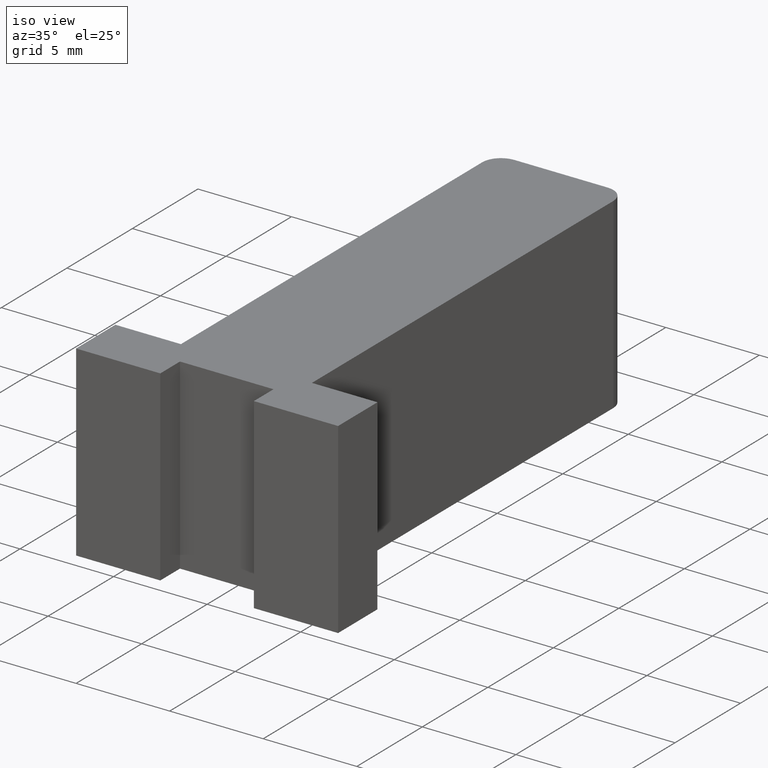
[diagram: clean part render]
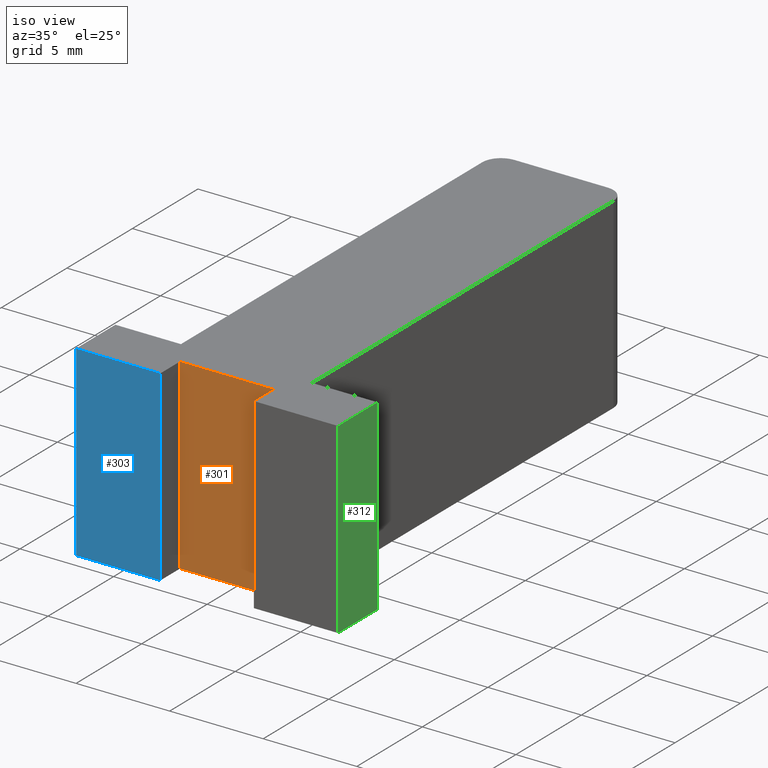
[diagram: same view with three faces highlighted in distinct colors, each labeled with its STEP entity id]
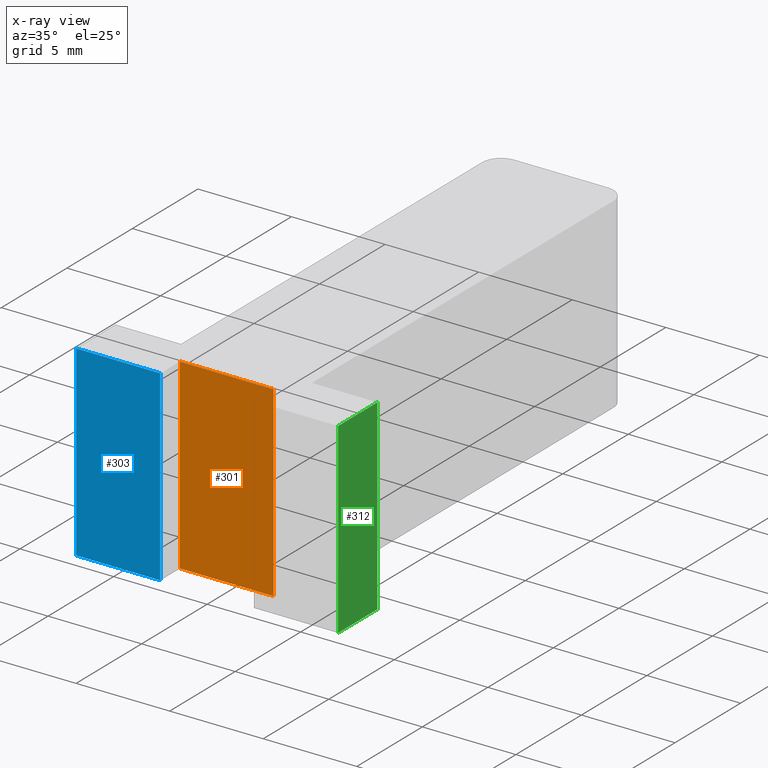
[diagram: x-ray of the same camera — body ghosted, the three highlighted faces saturated]
A machine part, iso view with three faces highlighted in distinct colors.
The next image is the same camera in x-ray (body ghosted, the three faces saturated) — at least one of them is partly hidden behind the body in this view.
Their STEP definitions:

[orange] entity #301 — the highlighted planar face has unit normal (0, -1, 0).
#21=FACE_OUTER_BOUND('',#37,.T.);
#37=EDGE_LOOP('',(#219,#220,#221,#222));
#58=LINE('',#448,#96);
#68=LINE('',#472,#106);
#70=LINE('',#476,#108);
#71=LINE('',#477,#109);
#96=VECTOR('',#365,10.);
#106=VECTOR('',#381,10.);
#108=VECTOR('',#385,10.);
#109=VECTOR('',#386,10.);
#134=VERTEX_POINT('',#445);
#135=VERTEX_POINT('',#447);
#146=VERTEX_POINT('',#470);
#147=VERTEX_POINT('',#475);
#162=EDGE_CURVE('',#135,#134,#58,.T.);
#174=EDGE_CURVE('',#146,#134,#68,.T.);
#176=EDGE_CURVE('',#146,#147,#70,.T.);
#177=EDGE_CURVE('',#147,#135,#71,.T.);
#219=ORIENTED_EDGE('',*,*,#176,.T.);
#220=ORIENTED_EDGE('',*,*,#177,.T.);
#221=ORIENTED_EDGE('',*,*,#162,.T.);
#222=ORIENTED_EDGE('',*,*,#174,.F.);
#287=PLANE('',#342);
#301=ADVANCED_FACE('',(#21),#287,.T.);
#342=AXIS2_PLACEMENT_3D('',#474,#383,#384);
#365=DIRECTION('',(1.,0.,0.));
#381=DIRECTION('',(0.,0.,-1.));
#383=DIRECTION('center_axis',(0.,-1.,0.));
#384=DIRECTION('ref_axis',(0.,0.,-1.));
#385=DIRECTION('',(-1.,0.,0.));
#386=DIRECTION('',(0.,0.,-1.));
#445=CARTESIAN_POINT('',(2.5,1.5,-5.));
#447=CARTESIAN_POINT('',(-2.5,1.5,-5.));
#448=CARTESIAN_POINT('',(2.5,1.5,-5.));
#470=CARTESIAN_POINT('',(2.5,1.5,5.));
#472=CARTESIAN_POINT('',(2.5,1.5,0.));
#474=CARTESIAN_POINT('Origin',(2.5,1.5,0.));
#475=CARTESIAN_POINT('',(-2.5,1.5,5.));
#476=CARTESIAN_POINT('',(2.5,1.5,5.));
#477=CARTESIAN_POINT('',(-2.5,1.5,0.));

[blue] entity #303 — the highlighted planar face has unit normal (0, -1, 0).
#23=FACE_OUTER_BOUND('',#39,.T.);
#39=EDGE_LOOP('',(#227,#228,#229,#230));
#60=LINE('',#452,#98);
#73=LINE('',#481,#111);
#74=LINE('',#484,#112);
#75=LINE('',#485,#113);
#98=VECTOR('',#367,10.);
#111=VECTOR('',#390,10.);
#112=VECTOR('',#393,10.);
#113=VECTOR('',#394,10.);
#136=VERTEX_POINT('',#449);
#137=VERTEX_POINT('',#451);
#148=VERTEX_POINT('',#479);
#149=VERTEX_POINT('',#483);
#164=EDGE_CURVE('',#137,#136,#60,.T.);
#179=EDGE_CURVE('',#148,#136,#73,.T.);
#180=EDGE_CURVE('',#148,#149,#74,.T.);
#181=EDGE_CURVE('',#149,#137,#75,.T.);
#227=ORIENTED_EDGE('',*,*,#180,.T.);
#228=ORIENTED_EDGE('',*,*,#181,.T.);
#229=ORIENTED_EDGE('',*,*,#164,.T.);
#230=ORIENTED_EDGE('',*,*,#179,.F.);
#289=PLANE('',#344);
#303=ADVANCED_FACE('',(#23),#289,.T.);
#344=AXIS2_PLACEMENT_3D('',#482,#391,#392);
#367=DIRECTION('',(1.,3.67394039744206E-16,0.));
#390=DIRECTION('',(0.,0.,-1.));
#391=DIRECTION('center_axis',(3.67394039744206E-16,-1.,0.));
#392=DIRECTION('ref_axis',(0.,0.,-1.));
#393=DIRECTION('',(-1.,-3.67394039744206E-16,0.));
#394=DIRECTION('',(0.,0.,-1.));
#449=CARTESIAN_POINT('',(-2.5,1.73552553625875E-15,-5.));
#451=CARTESIAN_POINT('',(-7.,8.22523574098181E-17,-5.));
#452=CARTESIAN_POINT('',(-2.5,1.73552553625875E-15,-5.));
#479=CARTESIAN_POINT('',(-2.5,1.73552553625875E-15,5.));
#481=CARTESIAN_POINT('',(-2.5,1.73552553625875E-15,0.));
#482=CARTESIAN_POINT('Origin',(-2.5,1.73552553625875E-15,0.));
#483=CARTESIAN_POINT('',(-7.,8.22523574098181E-17,5.));
#484=CARTESIAN_POINT('',(-2.5,1.73552553625875E-15,5.));
#485=CARTESIAN_POINT('',(-7.,8.22523574098181E-17,0.));

[green] entity #312 — the highlighted planar face has unit normal (1, 0, 0).
#32=FACE_OUTER_BOUND('',#48,.T.);
#48=EDGE_LOOP('',(#263,#264,#265,#266));
#55=LINE('',#442,#93);
#89=LINE('',#517,#127);
#90=LINE('',#520,#128);
#91=LINE('',#521,#129);
#93=VECTOR('',#362,10.);
#127=VECTOR('',#428,10.);
#128=VECTOR('',#431,10.);
#129=VECTOR('',#432,10.);
#131=VERTEX_POINT('',#440);
#132=VERTEX_POINT('',#441);
#157=VERTEX_POINT('',#515);
#158=VERTEX_POINT('',#519);
#159=EDGE_CURVE('',#131,#132,#55,.T.);
#197=EDGE_CURVE('',#157,#132,#89,.T.);
#198=EDGE_CURVE('',#157,#158,#90,.T.);
#199=EDGE_CURVE('',#131,#158,#91,.T.);
#263=ORIENTED_EDGE('',*,*,#198,.T.);
#264=ORIENTED_EDGE('',*,*,#199,.F.);
#265=ORIENTED_EDGE('',*,*,#159,.T.);
#266=ORIENTED_EDGE('',*,*,#197,.F.);
#296=PLANE('',#355);
#312=ADVANCED_FACE('',(#32),#296,.T.);
#355=AXIS2_PLACEMENT_3D('',#518,#429,#430);
#362=DIRECTION('',(0.,1.,0.));
#428=DIRECTION('',(0.,0.,-1.));
#429=DIRECTION('center_axis',(1.,0.,0.));
#430=DIRECTION('ref_axis',(0.,0.,-1.));
#431=DIRECTION('',(0.,-1.,0.));
#432=DIRECTION('',(0.,0.,1.));
#440=CARTESIAN_POINT('',(7.,8.22523574098181E-17,-5.));
#441=CARTESIAN_POINT('',(7.,3.,-5.));
#442=CARTESIAN_POINT('',(7.,3.,-5.));
#515=CARTESIAN_POINT('',(7.,3.,5.));
#517=CARTESIAN_POINT('',(7.,3.,0.));
#518=CARTESIAN_POINT('Origin',(7.,3.,0.));
#519=CARTESIAN_POINT('',(7.,8.22523574098181E-17,5.));
#520=CARTESIAN_POINT('',(7.,3.,5.));
#521=CARTESIAN_POINT('',(7.,8.22523574098181E-17,0.));